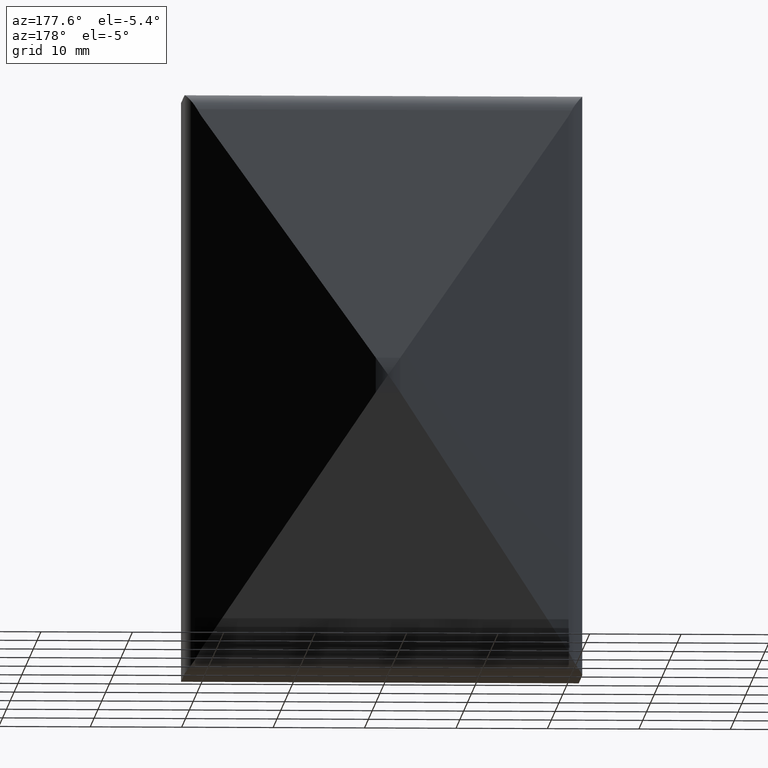
[diagram: clean part render]
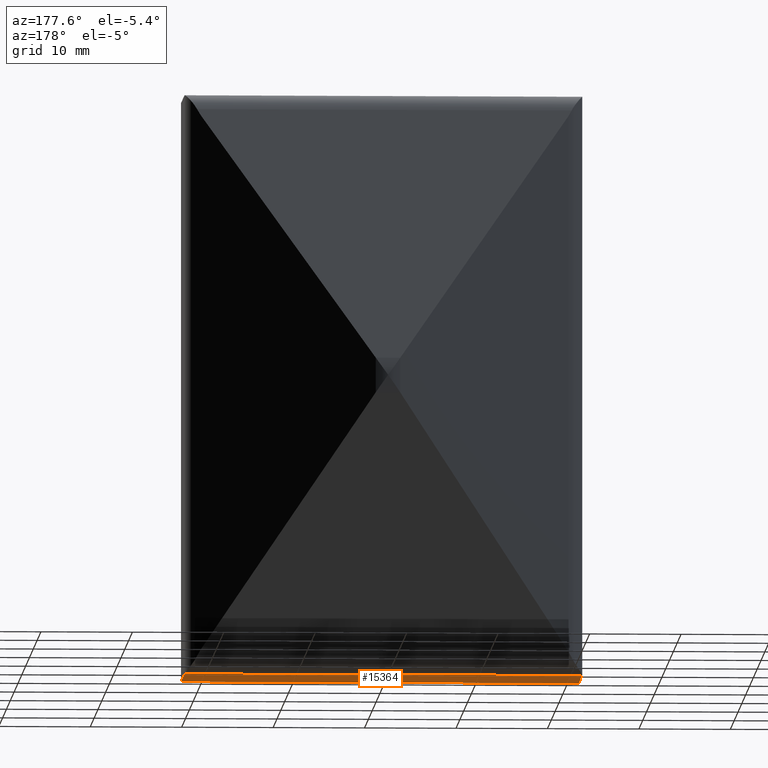
[diagram: same view with one face highlighted and labeled with its STEP entity id]
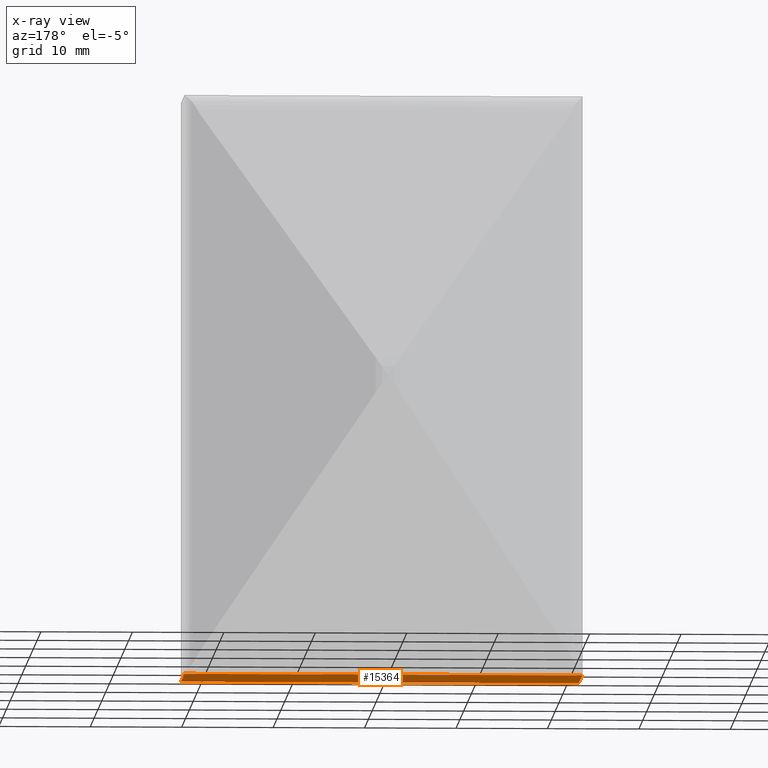
[diagram: x-ray of the same camera — body ghosted, the highlighted face saturated]
A machine part, auxiliary view. The second image highlights one B-rep face of the part: STEP entity #15364.
The next image is the same camera in x-ray: the body ghosted, the highlighted face saturated — about 0% of this face is hidden behind the body in this view.
In plain terms, the highlighted planar face has unit normal (0, 0, 1).
Its self-contained STEP definition (entity closure, byte-faithful):
#1089 = LINE ( 'NONE', #15873, #4965 ) ;
#1217 = VERTEX_POINT ( 'NONE', #10228 ) ;
#1583 = AXIS2_PLACEMENT_3D ( 'NONE', #3689, #8978, #16620 ) ;
#2446 = EDGE_CURVE ( 'NONE', #11038, #10592, #1089, .T. ) ;
#3305 = CARTESIAN_POINT ( 'NONE',  ( -21.75000000000000000, 9.144198849864384471, -31.75000000000000000 ) ) ;
#3689 = CARTESIAN_POINT ( 'NONE',  ( -18.74999999999998934, 9.144198849864443090, -31.75000000000000000 ) ) ;
#3987 = CARTESIAN_POINT ( 'NONE',  ( 21.75000000000000000, 9.144198849864443090, -31.75000000000000000 ) ) ;
#4094 = ORIENTED_EDGE ( 'NONE', *, *, #9702, .F. ) ;
#4965 = VECTOR ( 'NONE', #8059, 1000.000000000000000 ) ;
#5077 = PLANE ( 'NONE',  #1583 ) ;
#5087 = ORIENTED_EDGE ( 'NONE', *, *, #6472, .T. ) ;
#6472 = EDGE_CURVE ( 'NONE', #11038, #11812, #9935, .T. ) ;
#6962 = CARTESIAN_POINT ( 'NONE',  ( -21.75000000000000000, 9.144198849864384471, -31.75000000000000000 ) ) ;
#8059 = DIRECTION ( 'NONE',  ( 3.794150815087587112E-16, -1.000000000000000000, -0.000000000000000000 ) ) ;
#8978 = DIRECTION ( 'NONE',  ( 0.000000000000000000, 0.000000000000000000, 1.000000000000000000 ) ) ;
#8998 = DIRECTION ( 'NONE',  ( -2.276490489052552366E-15, 1.000000000000000000, -0.000000000000000000 ) ) ;
#9426 = EDGE_CURVE ( 'NONE', #1217, #11812, #13209, .T. ) ;
#9625 = DIRECTION ( 'NONE',  ( 1.000000000000000000, 0.000000000000000000, 0.000000000000000000 ) ) ;
#9702 = EDGE_CURVE ( 'NONE', #10592, #1217, #14217, .T. ) ;
#9750 = VECTOR ( 'NONE', #8998, 1000.000000000000000 ) ;
#9935 = LINE ( 'NONE', #6962, #10957 ) ;
#10136 = CARTESIAN_POINT ( 'NONE',  ( -21.74999999999998934, 3.076925082857724936E-15, -31.75000000000000000 ) ) ;
#10143 = VECTOR ( 'NONE', #9625, 1000.000000000000000 ) ;
#10177 = EDGE_LOOP ( 'NONE', ( #5087, #14109, #4094, #15005 ) ) ;
#10228 = CARTESIAN_POINT ( 'NONE',  ( 21.75000000000001066, 3.076925082857724936E-15, -31.75000000000000000 ) ) ;
#10592 = VERTEX_POINT ( 'NONE', #10136 ) ;
#10957 = VECTOR ( 'NONE', #14825, 1000.000000000000000 ) ;
#11038 = VERTEX_POINT ( 'NONE', #3305 ) ;
#11626 = CARTESIAN_POINT ( 'NONE',  ( 21.74999999999999289, 9.144198849864443090, -31.75000000000000000 ) ) ;
#11812 = VERTEX_POINT ( 'NONE', #3987 ) ;
#12368 = CARTESIAN_POINT ( 'NONE',  ( -21.74999999999998934, 3.076925082857724936E-15, -31.75000000000000000 ) ) ;
#13209 = LINE ( 'NONE', #11626, #9750 ) ;
#14109 = ORIENTED_EDGE ( 'NONE', *, *, #9426, .F. ) ;
#14217 = LINE ( 'NONE', #12368, #10143 ) ;
#14825 = DIRECTION ( 'NONE',  ( 1.000000000000000000, 1.369541201499284725E-15, -0.000000000000000000 ) ) ;
#15005 = ORIENTED_EDGE ( 'NONE', *, *, #2446, .F. ) ;
#15364 = ADVANCED_FACE ( 'NONE', ( #16001 ), #5077, .F. ) ;
#15873 = CARTESIAN_POINT ( 'NONE',  ( -21.74999999999998934, 3.076925082857724936E-15, -31.75000000000000000 ) ) ;
#16001 = FACE_OUTER_BOUND ( 'NONE', #10177, .T. ) ;
#16620 = DIRECTION ( 'NONE',  ( 1.000000000000000000, 0.000000000000000000, -0.000000000000000000 ) ) ;